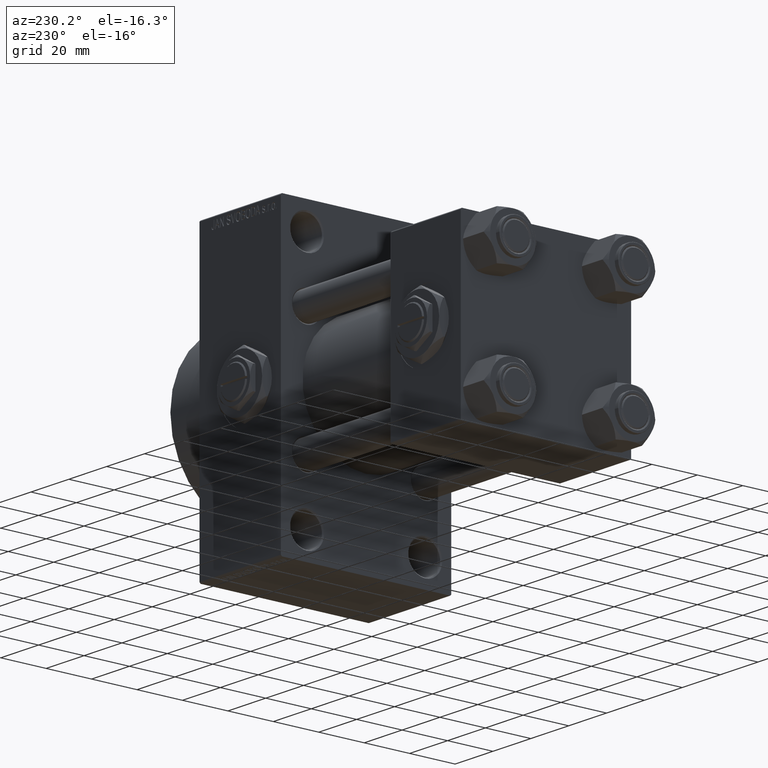
[diagram: clean part render]
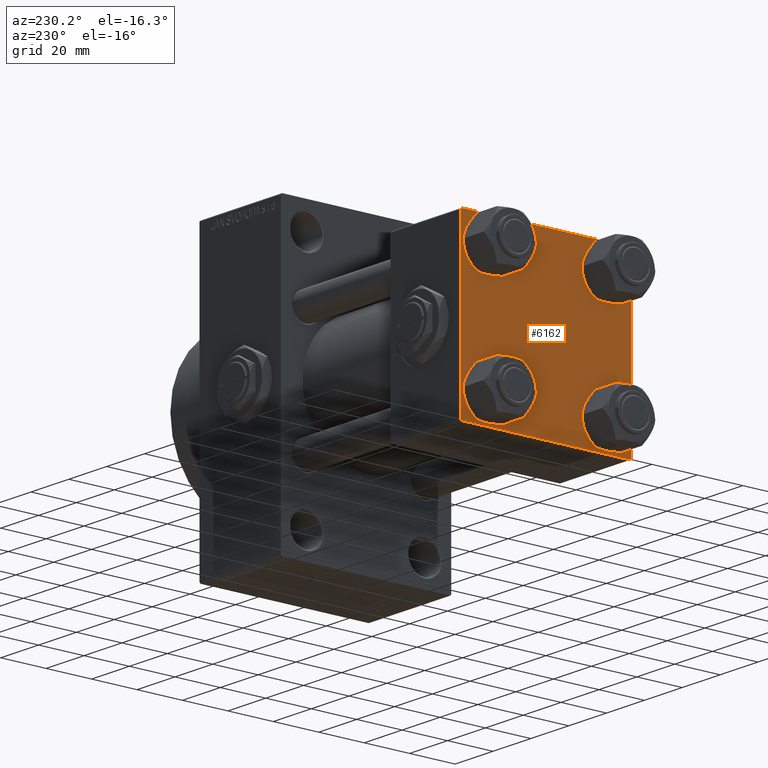
[diagram: same view with one face highlighted and labeled with its STEP entity id]
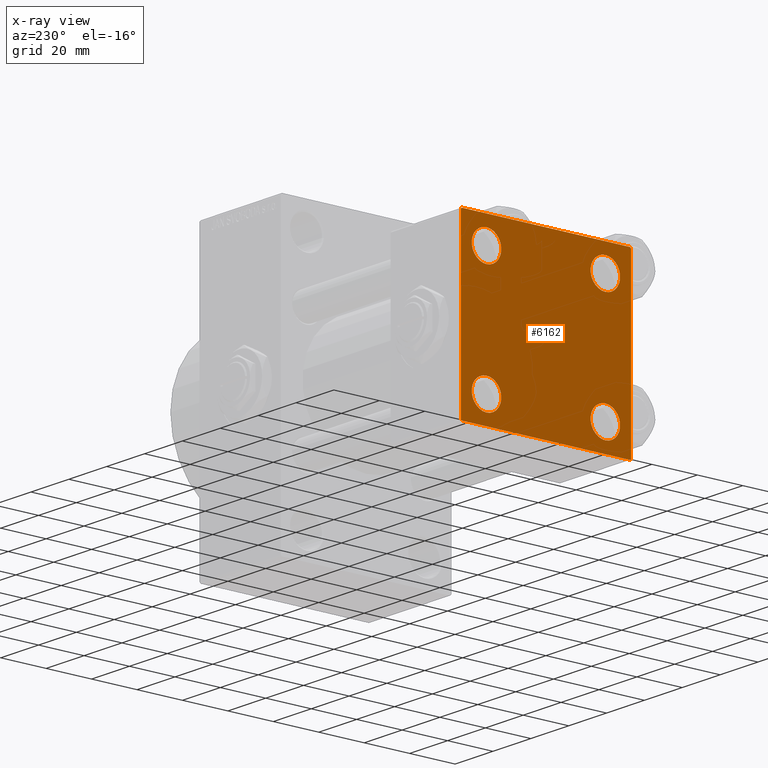
[diagram: x-ray of the same camera — body ghosted, the highlighted face saturated]
A machine part, auxiliary view. The second image highlights one B-rep face of the part: STEP entity #6162.
The next image is the same camera in x-ray: the body ghosted, the highlighted face saturated — about 0% of this face is hidden behind the body in this view.
In plain terms, the highlighted planar face has unit normal (-1, 0, 0).
Its self-contained STEP definition (entity closure, byte-faithful):
#291 = EDGE_LOOP ( 'NONE', ( #9503, #3858 ) ) ;
#353 = EDGE_LOOP ( 'NONE', ( #48047, #45828, #2459, #29993, #10291, #37264, #10635, #5607 ) ) ;
#986 = VERTEX_POINT ( 'NONE', #34144 ) ;
#1213 = ORIENTED_EDGE ( 'NONE', *, *, #38359, .T. ) ;
#1265 = VERTEX_POINT ( 'NONE', #19852 ) ;
#1332 = VERTEX_POINT ( 'NONE', #32324 ) ;
#1976 = CIRCLE ( 'NONE', #5118, 6.500000000000023093 ) ;
#2183 = DIRECTION ( 'NONE',  ( 0.000000000000000000, 0.000000000000000000, 1.000000000000000000 ) ) ;
#2459 = ORIENTED_EDGE ( 'NONE', *, *, #44220, .T. ) ;
#2963 = VERTEX_POINT ( 'NONE', #21945 ) ;
#3071 = EDGE_CURVE ( 'NONE', #28639, #35784, #28036, .T. ) ;
#3192 = VERTEX_POINT ( 'NONE', #42147 ) ;
#3558 = CIRCLE ( 'NONE', #31384, 6.500000000000015987 ) ;
#3858 = ORIENTED_EDGE ( 'NONE', *, *, #3071, .T. ) ;
#4011 = LINE ( 'NONE', #19172, #36906 ) ;
#4124 = AXIS2_PLACEMENT_3D ( 'NONE', #14761, #15001, #41450 ) ;
#4202 = VERTEX_POINT ( 'NONE', #40615 ) ;
#4424 = VERTEX_POINT ( 'NONE', #34249 ) ;
#4433 = EDGE_CURVE ( 'NONE', #1265, #38117, #21118, .T. ) ;
#4970 = EDGE_LOOP ( 'NONE', ( #1213, #37380 ) ) ;
#5118 = AXIS2_PLACEMENT_3D ( 'NONE', #47505, #27801, #43025 ) ;
#5141 = CARTESIAN_POINT ( 'NONE',  ( -0.000000000000000000, -37.25000000000000000, 37.25000000000000000 ) ) ;
#5607 = ORIENTED_EDGE ( 'NONE', *, *, #19343, .T. ) ;
#5841 = FACE_OUTER_BOUND ( 'NONE', #353, .T. ) ;
#6084 = DIRECTION ( 'NONE',  ( -1.000000000000000000, 0.000000000000000000, -0.000000000000000000 ) ) ;
#6123 = CARTESIAN_POINT ( 'NONE',  ( 0.000000000000000000, -37.50000000000000711, 37.49999999999999289 ) ) ;
#6151 = VECTOR ( 'NONE', #41134, 1000.000000000000114 ) ;
#6162 = ADVANCED_FACE ( 'NONE', ( #28506, #40447, #6309, #24753, #5841 ), #21007, .T. ) ;
#6309 = FACE_BOUND ( 'NONE', #4970, .T. ) ;
#6430 = ORIENTED_EDGE ( 'NONE', *, *, #19692, .T. ) ;
#6462 = CARTESIAN_POINT ( 'NONE',  ( 0.000000000000000000, 26.14999999999999858, -26.15000000000000213 ) ) ;
#6781 = VECTOR ( 'NONE', #27803, 1000.000000000000114 ) ;
#7050 = AXIS2_PLACEMENT_3D ( 'NONE', #43801, #9632, #2183 ) ;
#7082 = EDGE_LOOP ( 'NONE', ( #30813, #24140 ) ) ;
#8112 = DIRECTION ( 'NONE',  ( 1.000000000000000000, -0.000000000000000000, 0.000000000000000000 ) ) ;
#8723 = EDGE_CURVE ( 'NONE', #40669, #38117, #47743, .T. ) ;
#8934 = DIRECTION ( 'NONE',  ( 1.000000000000000000, -0.000000000000000000, 0.000000000000000000 ) ) ;
#9503 = ORIENTED_EDGE ( 'NONE', *, *, #22044, .T. ) ;
#9632 = DIRECTION ( 'NONE',  ( 1.000000000000000000, -0.000000000000000000, 0.000000000000000000 ) ) ;
#9914 = CARTESIAN_POINT ( 'NONE',  ( 0.000000000000000000, -37.24999999999975842, -37.25000000000027001 ) ) ;
#10170 = CARTESIAN_POINT ( 'NONE',  ( 0.000000000000000000, 37.24999999999999289, 37.24999999999999289 ) ) ;
#10256 = CARTESIAN_POINT ( 'NONE',  ( 0.000000000000000000, 37.49999999999999289, 37.50000000000000000 ) ) ;
#10291 = ORIENTED_EDGE ( 'NONE', *, *, #8723, .F. ) ;
#10533 = EDGE_CURVE ( 'NONE', #4202, #13149, #3558, .T. ) ;
#10635 = ORIENTED_EDGE ( 'NONE', *, *, #44166, .F. ) ;
#11087 = AXIS2_PLACEMENT_3D ( 'NONE', #40220, #6084, #40691 ) ;
#11100 = CARTESIAN_POINT ( 'NONE',  ( 0.000000000000000000, 26.14999999999999858, 32.65000000000002700 ) ) ;
#11481 = EDGE_CURVE ( 'NONE', #1332, #986, #38605, .T. ) ;
#11799 = EDGE_CURVE ( 'NONE', #40669, #24976, #12350, .T. ) ;
#11949 = LINE ( 'NONE', #23660, #20995 ) ;
#12350 = LINE ( 'NONE', #5141, #6781 ) ;
#12607 = CIRCLE ( 'NONE', #7050, 6.500000000000015987 ) ;
#13146 = CARTESIAN_POINT ( 'NONE',  ( 0.000000000000000000, -26.14999999999999147, 26.15000000000000924 ) ) ;
#13149 = VERTEX_POINT ( 'NONE', #26204 ) ;
#13856 = CARTESIAN_POINT ( 'NONE',  ( 0.000000000000000000, 37.49999999999999289, 37.00000000000000000 ) ) ;
#14474 = AXIS2_PLACEMENT_3D ( 'NONE', #15199, #8934, #45894 ) ;
#14761 = CARTESIAN_POINT ( 'NONE',  ( 0.000000000000000000, 26.14999999999999858, 26.15000000000000213 ) ) ;
#15001 = DIRECTION ( 'NONE',  ( 1.000000000000000000, -0.000000000000000000, 0.000000000000000000 ) ) ;
#15199 = CARTESIAN_POINT ( 'NONE',  ( 0.000000000000000000, -26.14999999999999147, 26.15000000000000924 ) ) ;
#16548 = EDGE_CURVE ( 'NONE', #3192, #2963, #48377, .T. ) ;
#17065 = DIRECTION ( 'NONE',  ( 0.000000000000000000, 9.251858538542971581E-17, -1.000000000000000000 ) ) ;
#17129 = EDGE_LOOP ( 'NONE', ( #6430, #39349 ) ) ;
#17471 = DIRECTION ( 'NONE',  ( 0.000000000000000000, 0.000000000000000000, -1.000000000000000000 ) ) ;
#19172 = CARTESIAN_POINT ( 'NONE',  ( 0.000000000000000000, 37.49999999999999289, 37.50000000000000000 ) ) ;
#19343 = EDGE_CURVE ( 'NONE', #32136, #31893, #40103, .T. ) ;
#19490 = CARTESIAN_POINT ( 'NONE',  ( 0.000000000000000000, -26.14999999999999147, 19.64999999999999147 ) ) ;
#19620 = CARTESIAN_POINT ( 'NONE',  ( 0.000000000000000000, -37.50000000000000000, -37.00000000000003553 ) ) ;
#19692 = EDGE_CURVE ( 'NONE', #13149, #4202, #12607, .T. ) ;
#19836 = CIRCLE ( 'NONE', #32593, 6.500000000000023093 ) ;
#19852 = CARTESIAN_POINT ( 'NONE',  ( 0.000000000000000000, -37.00000000000002132, -37.50000000000000711 ) ) ;
#20995 = VECTOR ( 'NONE', #31639, 1000.000000000000000 ) ;
#21007 = PLANE ( 'NONE',  #11087 ) ;
#21098 = CARTESIAN_POINT ( 'NONE',  ( 0.000000000000000000, 26.14999999999999858, -26.15000000000000213 ) ) ;
#21104 = DIRECTION ( 'NONE',  ( 0.000000000000000000, 0.000000000000000000, 1.000000000000000000 ) ) ;
#21118 = LINE ( 'NONE', #9914, #40810 ) ;
#21945 = CARTESIAN_POINT ( 'NONE',  ( 0.000000000000000000, 36.99999999999997868, -37.50000000000000000 ) ) ;
#22044 = EDGE_CURVE ( 'NONE', #35784, #28639, #19836, .T. ) ;
#23660 = CARTESIAN_POINT ( 'NONE',  ( 0.000000000000000000, 37.49999999999999289, -37.50000000000000000 ) ) ;
#24140 = ORIENTED_EDGE ( 'NONE', *, *, #45373, .T. ) ;
#24744 = AXIS2_PLACEMENT_3D ( 'NONE', #21098, #44072, #25097 ) ;
#24753 = FACE_BOUND ( 'NONE', #7082, .T. ) ;
#24976 = VERTEX_POINT ( 'NONE', #36096 ) ;
#25097 = DIRECTION ( 'NONE',  ( 0.000000000000000000, 0.000000000000000000, 1.000000000000000000 ) ) ;
#25594 = DIRECTION ( 'NONE',  ( 0.000000000000000000, -0.7071067811865524577, 0.7071067811865426878 ) ) ;
#25942 = LINE ( 'NONE', #10256, #28199 ) ;
#26204 = CARTESIAN_POINT ( 'NONE',  ( 0.000000000000000000, -26.14999999999999147, -19.64999999999999503 ) ) ;
#27801 = DIRECTION ( 'NONE',  ( 1.000000000000000000, -0.000000000000000000, 0.000000000000000000 ) ) ;
#27803 = DIRECTION ( 'NONE',  ( -0.000000000000000000, 0.7071067811865474617, 0.7071067811865474617 ) ) ;
#28036 = CIRCLE ( 'NONE', #14474, 6.500000000000023093 ) ;
#28199 = VECTOR ( 'NONE', #17471, 1000.000000000000000 ) ;
#28287 = AXIS2_PLACEMENT_3D ( 'NONE', #6462, #44602, #47854 ) ;
#28506 = FACE_BOUND ( 'NONE', #291, .T. ) ;
#28639 = VERTEX_POINT ( 'NONE', #19490 ) ;
#29098 = VECTOR ( 'NONE', #17065, 1000.000000000000000 ) ;
#29993 = ORIENTED_EDGE ( 'NONE', *, *, #4433, .T. ) ;
#30784 = CARTESIAN_POINT ( 'NONE',  ( 0.000000000000000000, -26.14999999999999147, -26.15000000000000924 ) ) ;
#30813 = ORIENTED_EDGE ( 'NONE', *, *, #39132, .T. ) ;
#30925 = VECTOR ( 'NONE', #47825, 1000.000000000000114 ) ;
#31384 = AXIS2_PLACEMENT_3D ( 'NONE', #30784, #8112, #46009 ) ;
#31639 = DIRECTION ( 'NONE',  ( 0.000000000000000000, -1.000000000000000000, -9.251858538542972814E-17 ) ) ;
#31893 = VERTEX_POINT ( 'NONE', #13856 ) ;
#32136 = VERTEX_POINT ( 'NONE', #35533 ) ;
#32324 = CARTESIAN_POINT ( 'NONE',  ( 0.000000000000000000, 26.14999999999999858, -32.65000000000001990 ) ) ;
#32364 = CARTESIAN_POINT ( 'NONE',  ( 0.000000000000000000, -26.14999999999999147, 32.65000000000003411 ) ) ;
#32593 = AXIS2_PLACEMENT_3D ( 'NONE', #13146, #43828, #21104 ) ;
#34144 = CARTESIAN_POINT ( 'NONE',  ( 0.000000000000000000, 26.14999999999999858, -19.64999999999998792 ) ) ;
#34249 = CARTESIAN_POINT ( 'NONE',  ( 0.000000000000000000, 26.14999999999999858, 19.64999999999998437 ) ) ;
#34396 = DIRECTION ( 'NONE',  ( 0.000000000000000000, -1.000000000000000000, -9.251858538542971581E-17 ) ) ;
#35533 = CARTESIAN_POINT ( 'NONE',  ( 0.000000000000000000, 36.99999999999999289, 37.50000000000000000 ) ) ;
#35784 = VERTEX_POINT ( 'NONE', #32364 ) ;
#35955 = CIRCLE ( 'NONE', #4124, 6.500000000000023093 ) ;
#36096 = CARTESIAN_POINT ( 'NONE',  ( 0.000000000000000000, -37.00000000000000711, 37.49999999999999289 ) ) ;
#36906 = VECTOR ( 'NONE', #34396, 1000.000000000000000 ) ;
#37264 = ORIENTED_EDGE ( 'NONE', *, *, #11799, .T. ) ;
#37380 = ORIENTED_EDGE ( 'NONE', *, *, #11481, .T. ) ;
#38117 = VERTEX_POINT ( 'NONE', #19620 ) ;
#38359 = EDGE_CURVE ( 'NONE', #986, #1332, #39917, .T. ) ;
#38605 = CIRCLE ( 'NONE', #28287, 6.500000000000015987 ) ;
#39132 = EDGE_CURVE ( 'NONE', #39793, #4424, #35955, .T. ) ;
#39349 = ORIENTED_EDGE ( 'NONE', *, *, #10533, .T. ) ;
#39793 = VERTEX_POINT ( 'NONE', #11100 ) ;
#39917 = CIRCLE ( 'NONE', #24744, 6.500000000000015987 ) ;
#40103 = LINE ( 'NONE', #10170, #30925 ) ;
#40220 = CARTESIAN_POINT ( 'NONE',  ( 0.000000000000000000, 0.000000000000000000, 0.000000000000000000 ) ) ;
#40447 = FACE_BOUND ( 'NONE', #17129, .T. ) ;
#40615 = CARTESIAN_POINT ( 'NONE',  ( 0.000000000000000000, -26.14999999999999147, -32.65000000000002700 ) ) ;
#40669 = VERTEX_POINT ( 'NONE', #43887 ) ;
#40691 = DIRECTION ( 'NONE',  ( -0.000000000000000000, 0.000000000000000000, 1.000000000000000000 ) ) ;
#40810 = VECTOR ( 'NONE', #25594, 1000.000000000000000 ) ;
#41134 = DIRECTION ( 'NONE',  ( -0.000000000000000000, -0.7071067811865474617, -0.7071067811865474617 ) ) ;
#41450 = DIRECTION ( 'NONE',  ( 0.000000000000000000, 0.000000000000000000, 1.000000000000000000 ) ) ;
#42147 = CARTESIAN_POINT ( 'NONE',  ( 0.000000000000000000, 37.49999999999999289, -36.99999999999998579 ) ) ;
#43025 = DIRECTION ( 'NONE',  ( 0.000000000000000000, 0.000000000000000000, 1.000000000000000000 ) ) ;
#43801 = CARTESIAN_POINT ( 'NONE',  ( 0.000000000000000000, -26.14999999999999147, -26.15000000000000924 ) ) ;
#43828 = DIRECTION ( 'NONE',  ( 1.000000000000000000, -0.000000000000000000, 0.000000000000000000 ) ) ;
#43887 = CARTESIAN_POINT ( 'NONE',  ( 0.000000000000000000, -37.50000000000000711, 36.99999999999999289 ) ) ;
#44072 = DIRECTION ( 'NONE',  ( 1.000000000000000000, -0.000000000000000000, 0.000000000000000000 ) ) ;
#44166 = EDGE_CURVE ( 'NONE', #32136, #24976, #4011, .T. ) ;
#44220 = EDGE_CURVE ( 'NONE', #2963, #1265, #11949, .T. ) ;
#44602 = DIRECTION ( 'NONE',  ( 1.000000000000000000, -0.000000000000000000, 0.000000000000000000 ) ) ;
#45373 = EDGE_CURVE ( 'NONE', #4424, #39793, #1976, .T. ) ;
#45828 = ORIENTED_EDGE ( 'NONE', *, *, #16548, .T. ) ;
#45894 = DIRECTION ( 'NONE',  ( 0.000000000000000000, 0.000000000000000000, 1.000000000000000000 ) ) ;
#46009 = DIRECTION ( 'NONE',  ( 0.000000000000000000, 0.000000000000000000, 1.000000000000000000 ) ) ;
#47505 = CARTESIAN_POINT ( 'NONE',  ( 0.000000000000000000, 26.14999999999999858, 26.15000000000000213 ) ) ;
#47743 = LINE ( 'NONE', #6123, #29098 ) ;
#47825 = DIRECTION ( 'NONE',  ( 0.000000000000000000, 0.7071067811865474617, -0.7071067811865474617 ) ) ;
#47854 = DIRECTION ( 'NONE',  ( 0.000000000000000000, 0.000000000000000000, 1.000000000000000000 ) ) ;
#48047 = ORIENTED_EDGE ( 'NONE', *, *, #48700, .T. ) ;
#48377 = LINE ( 'NONE', #48872, #6151 ) ;
#48700 = EDGE_CURVE ( 'NONE', #31893, #3192, #25942, .T. ) ;
#48872 = CARTESIAN_POINT ( 'NONE',  ( 0.000000000000000000, 37.24999999999998579, -37.24999999999998579 ) ) ;